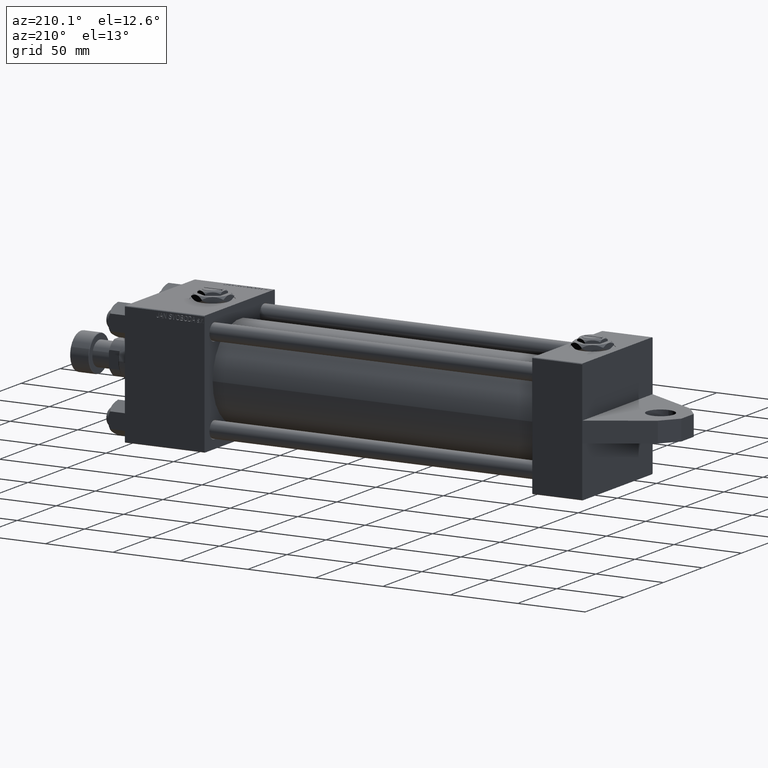
[diagram: clean part render]
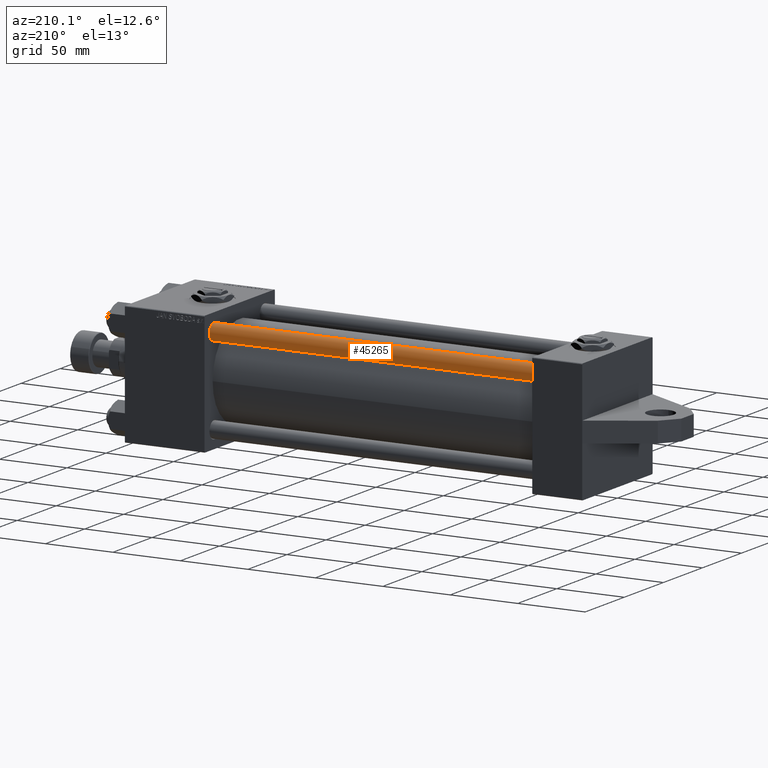
[diagram: same view with one face highlighted and labeled with its STEP entity id]
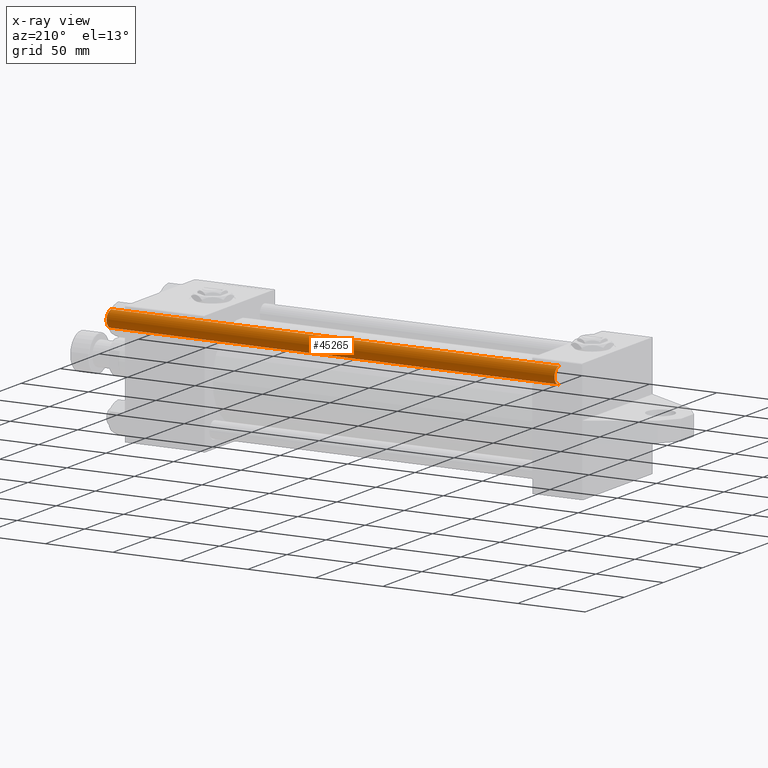
[diagram: x-ray of the same camera — body ghosted, the highlighted face saturated]
A machine part, auxiliary view. The second image highlights one B-rep face of the part: STEP entity #45265.
The next image is the same camera in x-ray: the body ghosted, the highlighted face saturated — about 0% of this face is hidden behind the body in this view.
In plain terms, the highlighted cylindrical surface (edge-blend (fillet) strip) has radius 6 mm, axis along (-1, 0, -0).
Its self-contained STEP definition (entity closure, byte-faithful):
#1076 = VERTEX_POINT ( 'NONE', #35314 ) ;
#1463 = CARTESIAN_POINT ( 'NONE',  ( 0.000000000000000000, 0.000000000000000000, 332.5000000000001137 ) ) ;
#2772 = AXIS2_PLACEMENT_3D ( 'NONE', #1463, #12754, #20367 ) ;
#3001 = VECTOR ( 'NONE', #25786, 1000.000000000000000 ) ;
#4301 = ORIENTED_EDGE ( 'NONE', *, *, #9823, .T. ) ;
#4344 = VERTEX_POINT ( 'NONE', #34554 ) ;
#7331 = CYLINDRICAL_SURFACE ( 'NONE', #37849, 6.000000000000000888 ) ;
#9823 = EDGE_CURVE ( 'NONE', #17462, #13408, #32902, .T. ) ;
#11008 = DIRECTION ( 'NONE',  ( -0.000000000000000000, -0.000000000000000000, -1.000000000000000000 ) ) ;
#12754 = DIRECTION ( 'NONE',  ( 0.000000000000000000, 0.000000000000000000, -1.000000000000000000 ) ) ;
#13408 = VERTEX_POINT ( 'NONE', #20938 ) ;
#13918 = AXIS2_PLACEMENT_3D ( 'NONE', #17952, #32465, #28296 ) ;
#14221 = DIRECTION ( 'NONE',  ( -1.000000000000000000, 0.000000000000000000, 0.000000000000000000 ) ) ;
#15650 = EDGE_CURVE ( 'NONE', #4344, #17462, #23955, .T. ) ;
#17462 = VERTEX_POINT ( 'NONE', #41276 ) ;
#17952 = CARTESIAN_POINT ( 'NONE',  ( 0.000000000000000000, 0.000000000000000000, 0.5000000000000004441 ) ) ;
#18397 = EDGE_LOOP ( 'NONE', ( #38426, #4301, #44717, #29377 ) ) ;
#19131 = CARTESIAN_POINT ( 'NONE',  ( -6.000000000000000888, 0.000000000000000000, 333.0000000000000000 ) ) ;
#20367 = DIRECTION ( 'NONE',  ( 1.000000000000000000, 0.000000000000000000, 0.000000000000000000 ) ) ;
#20938 = CARTESIAN_POINT ( 'NONE',  ( 6.000000000000000888, 7.347880794884120722E-16, 0.5000000000000004441 ) ) ;
#23955 = CIRCLE ( 'NONE', #2772, 6.000000000000000888 ) ;
#25786 = DIRECTION ( 'NONE',  ( -0.000000000000000000, -0.000000000000000000, -1.000000000000000000 ) ) ;
#28296 = DIRECTION ( 'NONE',  ( 1.000000000000000000, 0.000000000000000000, 0.000000000000000000 ) ) ;
#29377 = ORIENTED_EDGE ( 'NONE', *, *, #35413, .F. ) ;
#30151 = EDGE_CURVE ( 'NONE', #13408, #1076, #38220, .T. ) ;
#32465 = DIRECTION ( 'NONE',  ( -0.000000000000000000, -0.000000000000000000, 1.000000000000000000 ) ) ;
#32902 = LINE ( 'NONE', #41252, #40348 ) ;
#34554 = CARTESIAN_POINT ( 'NONE',  ( -6.000000000000000888, 0.000000000000000000, 332.5000000000001137 ) ) ;
#35314 = CARTESIAN_POINT ( 'NONE',  ( -6.000000000000000888, 0.000000000000000000, 0.5000000000000004441 ) ) ;
#35413 = EDGE_CURVE ( 'NONE', #4344, #1076, #45423, .T. ) ;
#37780 = FACE_OUTER_BOUND ( 'NONE', #18397, .T. ) ;
#37849 = AXIS2_PLACEMENT_3D ( 'NONE', #40515, #11008, #14221 ) ;
#38220 = CIRCLE ( 'NONE', #13918, 6.000000000000000888 ) ;
#38426 = ORIENTED_EDGE ( 'NONE', *, *, #15650, .T. ) ;
#40348 = VECTOR ( 'NONE', #48380, 1000.000000000000000 ) ;
#40515 = CARTESIAN_POINT ( 'NONE',  ( 0.000000000000000000, 0.000000000000000000, 333.0000000000000000 ) ) ;
#41252 = CARTESIAN_POINT ( 'NONE',  ( 6.000000000000000888, 7.347880794884120722E-16, 333.0000000000000000 ) ) ;
#41276 = CARTESIAN_POINT ( 'NONE',  ( 6.000000000000000888, 7.347880794884120722E-16, 332.5000000000001137 ) ) ;
#44717 = ORIENTED_EDGE ( 'NONE', *, *, #30151, .T. ) ;
#45265 = ADVANCED_FACE ( 'NONE', ( #37780 ), #7331, .T. ) ;
#45423 = LINE ( 'NONE', #19131, #3001 ) ;
#48380 = DIRECTION ( 'NONE',  ( -0.000000000000000000, -0.000000000000000000, -1.000000000000000000 ) ) ;